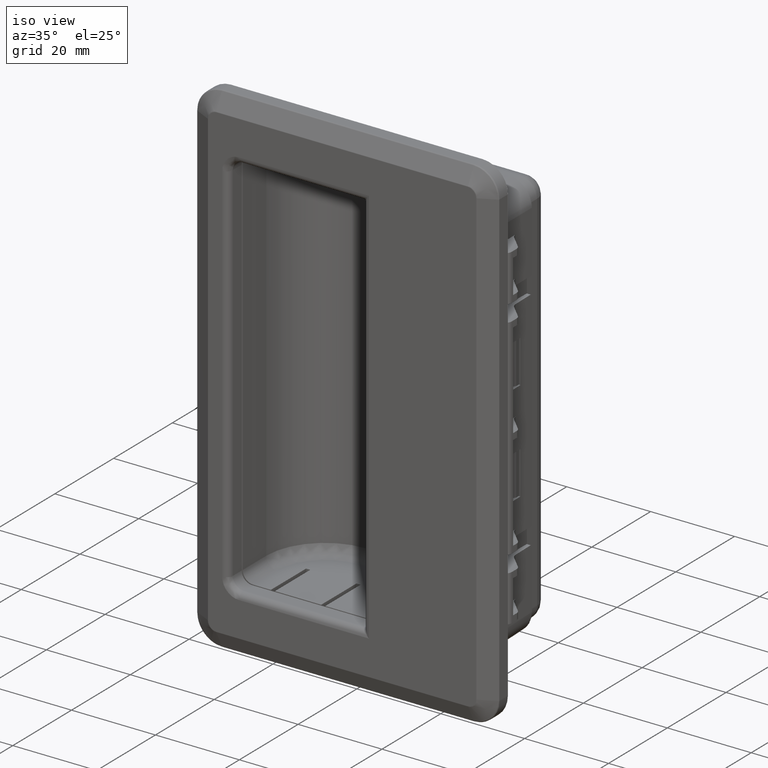
[diagram: clean part render]
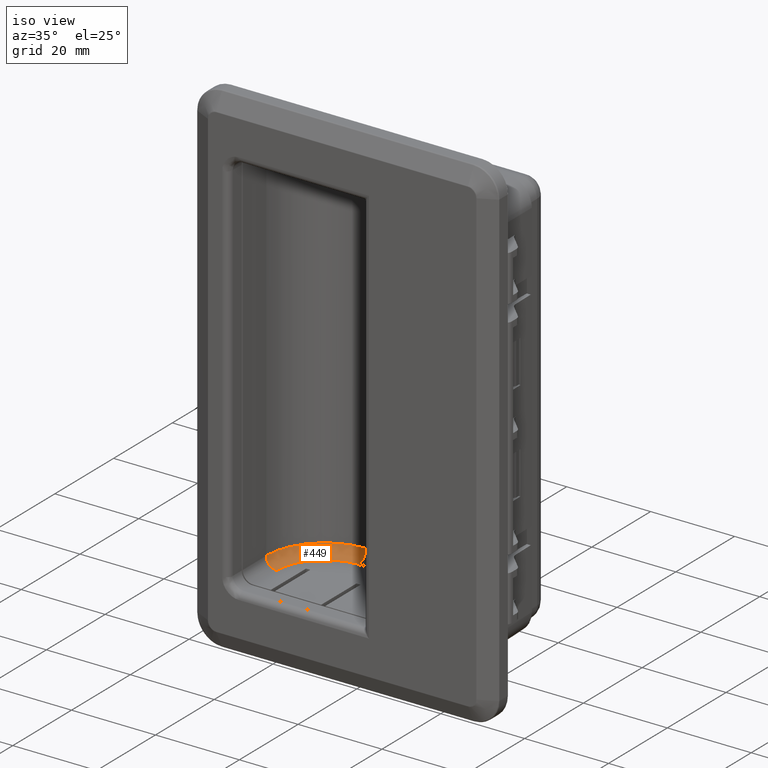
[diagram: same view with one face highlighted and labeled with its STEP entity id]
A machine part, iso view. The second image highlights one B-rep face of the part: STEP entity #449.
In plain terms, the highlighted face is a freeform B-spline surface patch.
Its self-contained STEP definition (entity closure, byte-faithful):
#449=ADVANCED_FACE('',(#5137),#5136,.F.);
#5136=( BOUNDED_SURFACE() B_SPLINE_SURFACE( 2,2,((#13040,#13041,#13042,#13043,#13044),(#13045,#13046,#13047,#13048,#13049),(#13050,#13051,#13052,#13053,#13054),(#13055,#13056,#13057,#13058,#13059),(#13060,#13061,#13062,#13063,#13064),(#13065,#13066,#13067,#13068,#13069),(#13070,#13071,#13072,#13073,#13074)), .UNSPECIFIED.,.T.,.F.,.F.) B_SPLINE_SURFACE_WITH_KNOTS((3,2,2,3),(3,2,3),(0.00000000000E+000,3.33333333333E-001,6.66666666667E-001,1.00000000000E+000),(0.00000000000E+000,5.00000000000E-001,1.00000000000E+000), .UNSPECIFIED. ) GEOMETRIC_REPRESENTATION_ITEM() RATIONAL_B_SPLINE_SURFACE(((1.00000000000E+000,7.07106781187E-001,1.00000000000E+000,7.07106781187E-001,1.00000000000E+000),(5.00000000000E-001,3.53553390593E-001,5.00000000000E-001,3.53553390593E-001,5.00000000000E-001),(1.00000000000E+000,7.07106781187E-001,1.00000000000E+000,7.07106781187E-001,1.00000000000E+000),(5.00000000000E-001,3.53553390593E-001,5.00000000000E-001,3.53553390593E-001,5.00000000000E-001),(1.00000000000E+000,7.07106781187E-001,1.00000000000E+000,7.07106781187E-001,1.00000000000E+000),(5.00000000000E-001,3.53553390593E-001,5.00000000000E-001,3.53553390593E-001,5.00000000000E-001),(1.00000000000E+000,7.07106781187E-001,1.00000000000E+000,7.07106781187E-001,1.00000000000E+000))) REPRESENTATION_ITEM('') SURFACE() );
#5137=FACE_OUTER_BOUND('',#13075,.T.);
#13040=CARTESIAN_POINT('',(8.00000000214E-001,8.00000000000E+000,-4.37999999999E+001));
#13041=CARTESIAN_POINT('',(8.00000000214E-001,8.00000000000E+000,-4.62999999999E+001));
#13042=CARTESIAN_POINT('',(-1.69999999979E+000,8.00000000000E+000,-4.62999999999E+001));
#13043=CARTESIAN_POINT('',(-4.19999999979E+000,8.00000000000E+000,-4.62999999999E+001));
#13044=CARTESIAN_POINT('',(-4.19999999979E+000,8.00000000000E+000,-4.37999999999E+001));
#13045=CARTESIAN_POINT('',(8.00000000214E-001,-1.62487113060E+001,-4.37999999999E+001));
#13046=CARTESIAN_POINT('',(8.00000000214E-001,-1.62487113060E+001,-4.62999999999E+001));
#13047=CARTESIAN_POINT('',(-1.69999999979E+000,-1.19185842870E+001,-4.62999999999E+001));
#13048=CARTESIAN_POINT('',(-4.19999999979E+000,-7.58845726812E+000,-4.62999999999E+001));
#13049=CARTESIAN_POINT('',(-4.19999999979E+000,-7.58845726812E+000,-4.37999999999E+001));
#13050=CARTESIAN_POINT('',(-2.01999999998E+001,-4.12435565298E+000,-4.37999999999E+001));
#13051=CARTESIAN_POINT('',(-2.01999999998E+001,-4.12435565298E+000,-4.62999999999E+001));
#13052=CARTESIAN_POINT('',(-1.89499999998E+001,-1.95929214352E+000,-4.62999999999E+001));
#13053=CARTESIAN_POINT('',(-1.76999999998E+001,2.05771365940E-001,-4.62999999999E+001));
#13054=CARTESIAN_POINT('',(-1.76999999998E+001,2.05771365940E-001,-4.37999999999E+001));
#13055=CARTESIAN_POINT('',(-4.11999999998E+001,8.00000000000E+000,-4.37999999999E+001));
#13056=CARTESIAN_POINT('',(-4.11999999998E+001,8.00000000000E+000,-4.62999999999E+001));
#13057=CARTESIAN_POINT('',(-3.61999999998E+001,8.00000000000E+000,-4.62999999999E+001));
#13058=CARTESIAN_POINT('',(-3.11999999998E+001,8.00000000000E+000,-4.62999999999E+001));
#13059=CARTESIAN_POINT('',(-3.11999999998E+001,8.00000000000E+000,-4.37999999999E+001));
#13060=CARTESIAN_POINT('',(-2.01999999998E+001,2.01243556530E+001,-4.37999999999E+001));
#13061=CARTESIAN_POINT('',(-2.01999999998E+001,2.01243556530E+001,-4.62999999999E+001));
#13062=CARTESIAN_POINT('',(-1.89499999998E+001,1.79592921435E+001,-4.62999999999E+001));
#13063=CARTESIAN_POINT('',(-1.76999999998E+001,1.57942286341E+001,-4.62999999999E+001));
#13064=CARTESIAN_POINT('',(-1.76999999998E+001,1.57942286341E+001,-4.37999999999E+001));
#13065=CARTESIAN_POINT('',(8.00000000214E-001,3.22487113060E+001,-4.37999999999E+001));
#13066=CARTESIAN_POINT('',(8.00000000214E-001,3.22487113060E+001,-4.62999999999E+001));
#13067=CARTESIAN_POINT('',(-1.69999999979E+000,2.79185842870E+001,-4.62999999999E+001));
#13068=CARTESIAN_POINT('',(-4.19999999979E+000,2.35884572681E+001,-4.62999999999E+001));
#13069=CARTESIAN_POINT('',(-4.19999999979E+000,2.35884572681E+001,-4.37999999999E+001));
#13070=CARTESIAN_POINT('',(8.00000000214E-001,8.00000000000E+000,-4.37999999999E+001));
#13071=CARTESIAN_POINT('',(8.00000000214E-001,8.00000000000E+000,-4.62999999999E+001));
#13072=CARTESIAN_POINT('',(-1.69999999979E+000,8.00000000000E+000,-4.62999999999E+001));
#13073=CARTESIAN_POINT('',(-4.19999999979E+000,8.00000000000E+000,-4.62999999999E+001));
#13074=CARTESIAN_POINT('',(-4.19999999979E+000,8.00000000000E+000,-4.37999999999E+001));
#13075=EDGE_LOOP('',(#21101,#21102,#21103,#21104));
#21101=ORIENTED_EDGE('',*,*,#25357,.F.);
#21102=ORIENTED_EDGE('',*,*,#25338,.T.);
#21103=ORIENTED_EDGE('',*,*,#25358,.T.);
#21104=ORIENTED_EDGE('',*,*,#25325,.T.);
#25325=EDGE_CURVE('',#37291,#37332,#37339,.T.);
#25338=EDGE_CURVE('',#37428,#37421,#37429,.T.);
#25357=EDGE_CURVE('',#37428,#37332,#37557,.T.);
#25358=EDGE_CURVE('',#37421,#37291,#37563,.T.);
#37291=VERTEX_POINT('',#48518);
#37332=VERTEX_POINT('',#48545);
#37339=CIRCLE('',#48552,1.40000000000E+001);
#37421=VERTEX_POINT('',#48596);
#37428=VERTEX_POINT('',#48600);
#37429=CIRCLE('',#48604,1.15000000000E+001);
#37557=CIRCLE('',#48676,2.50000000000E+000);
#37563=CIRCLE('',#48680,2.50000000000E+000);
#48518=CARTESIAN_POINT('',(-1.31999999998E+001,2.20000000000E+001,-4.37999999999E+001));
#48545=CARTESIAN_POINT('',(-2.71999999998E+001,7.99999999984E+000,-4.37999999999E+001));
#48549=CARTESIAN_POINT('',(-1.31999999998E+001,8.00000000000E+000,-4.37999999999E+001));
#48550=DIRECTION('',(0.00000000000E+000,-0.00000000000E+000,1.00000000000E+000));
#48551=DIRECTION('',(1.83690953073E-016,1.00000000000E+000,0.00000000000E+000));
#48552=AXIS2_PLACEMENT_3D('',#48549,#48550,#48551);
#48596=CARTESIAN_POINT('',(-1.31999999998E+001,1.95000000000E+001,-4.62999999999E+001));
#48600=CARTESIAN_POINT('',(-2.46999999998E+001,7.99999999986E+000,-4.62999999999E+001));
#48601=CARTESIAN_POINT('',(-1.31999999998E+001,8.00000000000E+000,-4.62999999999E+001));
#48602=DIRECTION('',(0.00000000000E+000,0.00000000000E+000,-1.00000000000E+000));
#48603=DIRECTION('',(1.00000000000E+000,-0.00000000000E+000,-0.00000000000E+000));
#48604=AXIS2_PLACEMENT_3D('',#48601,#48602,#48603);
#48673=CARTESIAN_POINT('',(-2.46999999998E+001,7.99999999986E+000,-4.37999999999E+001));
#48674=DIRECTION('',(-1.18636440813E-011,1.00000000000E+000,0.00000000000E+000));
#48675=DIRECTION('',(1.00000000000E+000,1.18636440813E-011,-0.00000000000E+000));
#48676=AXIS2_PLACEMENT_3D('',#48673,#48674,#48675);
#48677=CARTESIAN_POINT('',(-1.31999999998E+001,1.95000000000E+001,-4.37999999999E+001));
#48678=DIRECTION('',(1.00000000000E+000,0.00000000000E+000,-0.00000000000E+000));
#48679=DIRECTION('',(-0.00000000000E+000,-0.00000000000E+000,-1.00000000000E+000));
#48680=AXIS2_PLACEMENT_3D('',#48677,#48678,#48679);